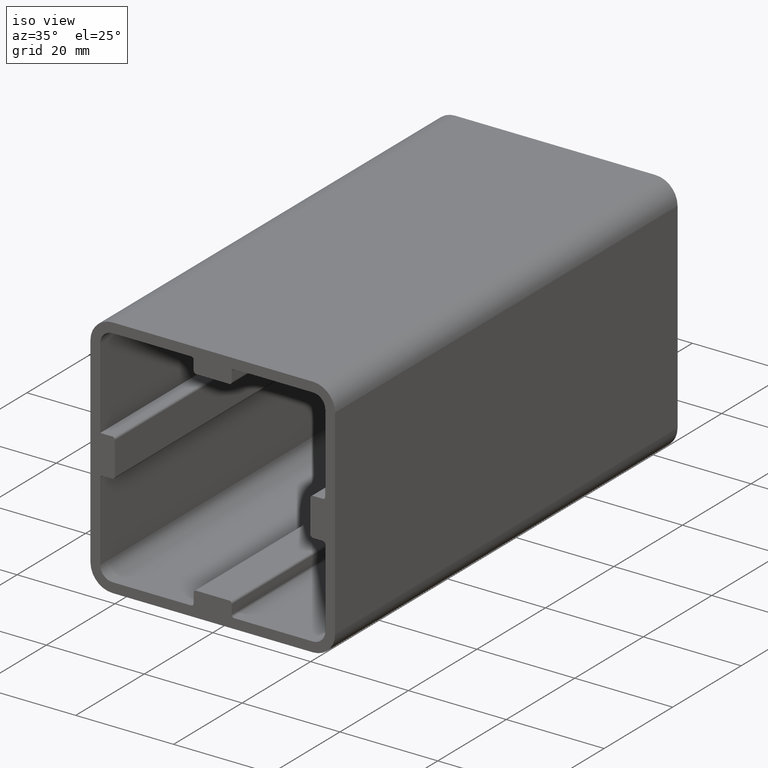
[diagram: clean part render]
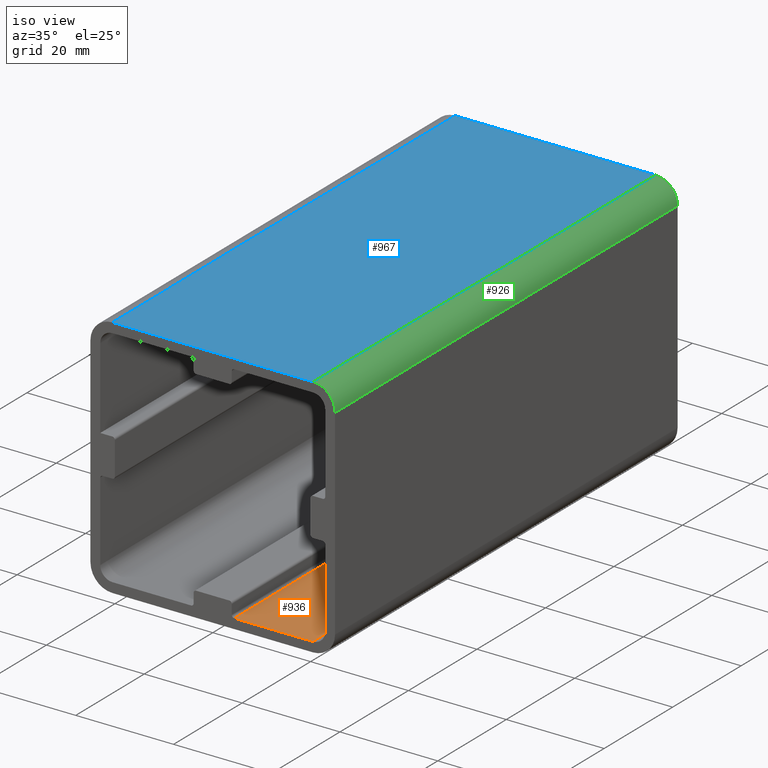
[diagram: same view with three faces highlighted in distinct colors, each labeled with its STEP entity id]
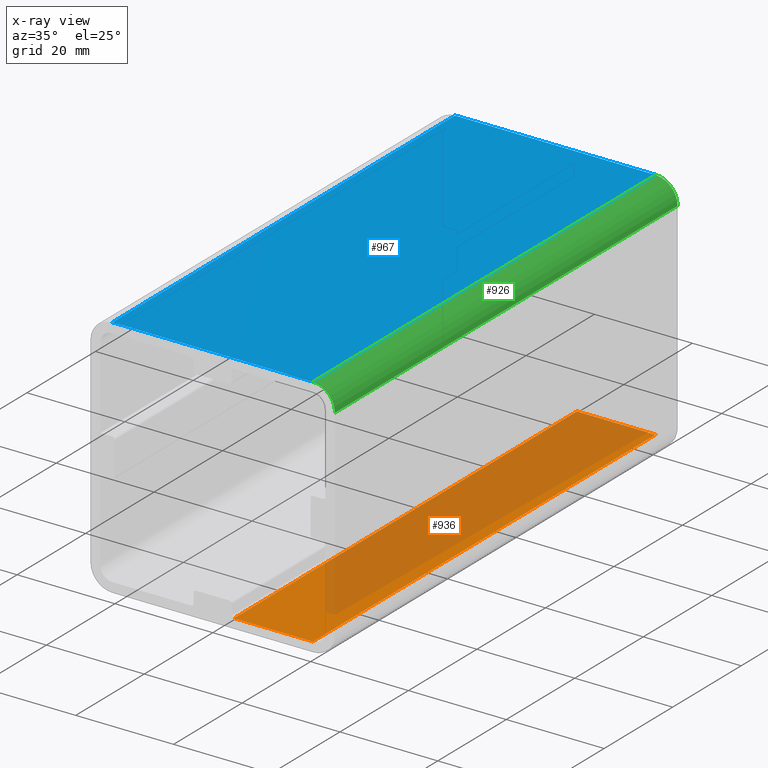
[diagram: x-ray of the same camera — body ghosted, the three highlighted faces saturated]
A machine part, iso view with three faces highlighted in distinct colors.
The next image is the same camera in x-ray (body ghosted, the three faces saturated) — at least one of them is partly hidden behind the body in this view.
Their STEP definitions:

[orange] entity #936 — the highlighted planar face has unit normal (-0, 0, -1).
#25=PLANE('',#1051);
#60=FACE_OUTER_BOUND('',#111,.T.);
#111=EDGE_LOOP('',(#768,#769,#770,#771));
#150=LINE('',#1402,#245);
#195=LINE('',#1567,#290);
#209=LINE('',#1592,#304);
#211=LINE('',#1596,#306);
#245=VECTOR('',#1110,10.);
#290=VECTOR('',#1239,10.);
#304=VECTOR('',#1273,10.);
#306=VECTOR('',#1279,10.);
#392=VERTEX_POINT('',#1399);
#393=VERTEX_POINT('',#1401);
#470=VERTEX_POINT('',#1564);
#471=VERTEX_POINT('',#1566);
#487=EDGE_CURVE('',#392,#393,#150,.T.);
#570=EDGE_CURVE('',#470,#471,#195,.T.);
#585=EDGE_CURVE('',#393,#470,#209,.T.);
#587=EDGE_CURVE('',#471,#392,#211,.T.);
#768=ORIENTED_EDGE('',*,*,#585,.F.);
#769=ORIENTED_EDGE('',*,*,#487,.F.);
#770=ORIENTED_EDGE('',*,*,#587,.F.);
#771=ORIENTED_EDGE('',*,*,#570,.F.);
#936=ADVANCED_FACE('',(#60),#25,.F.);
#1051=AXIS2_PLACEMENT_3D('',#1598,#1281,#1282);
#1110=DIRECTION('',(1.,0.,-2.32507439712075E-16));
#1239=DIRECTION('',(-1.,0.,2.32507439712075E-16));
#1273=DIRECTION('',(0.,-1.,0.));
#1279=DIRECTION('',(0.,1.,0.));
#1281=DIRECTION('center_axis',(-2.32507439712075E-16,0.,-1.));
#1282=DIRECTION('ref_axis',(-1.,0.,2.32507439712075E-16));
#1399=CARTESIAN_POINT('',(4.4,100.,-23.));
#1401=CARTESIAN_POINT('',(20.5,100.,-23.));
#1402=CARTESIAN_POINT('',(11.5,100.,-23.));
#1564=CARTESIAN_POINT('',(20.5,0.,-23.));
#1566=CARTESIAN_POINT('',(4.4,0.,-23.));
#1567=CARTESIAN_POINT('',(11.5,0.,-23.));
#1592=CARTESIAN_POINT('',(20.5,0.,-23.));
#1596=CARTESIAN_POINT('',(4.4,0.,-23.));
#1598=CARTESIAN_POINT('Origin',(23.,0.,-23.));

[blue] entity #967 — the highlighted planar face has unit normal (0, 0, 1).
#42=PLANE('',#1082);
#91=FACE_OUTER_BOUND('',#142,.T.);
#142=EDGE_LOOP('',(#892,#893,#894,#895));
#146=LINE('',#1386,#241);
#171=LINE('',#1479,#266);
#176=LINE('',#1492,#271);
#198=LINE('',#1574,#293);
#241=VECTOR('',#1098,10.);
#266=VECTOR('',#1171,10.);
#271=VECTOR('',#1184,10.);
#293=VECTOR('',#1248,10.);
#384=VERTEX_POINT('',#1383);
#385=VERTEX_POINT('',#1385);
#429=VERTEX_POINT('',#1477);
#433=VERTEX_POINT('',#1490);
#479=EDGE_CURVE('',#384,#385,#146,.T.);
#526=EDGE_CURVE('',#429,#384,#171,.T.);
#533=EDGE_CURVE('',#429,#433,#176,.T.);
#574=EDGE_CURVE('',#385,#433,#198,.T.);
#892=ORIENTED_EDGE('',*,*,#526,.F.);
#893=ORIENTED_EDGE('',*,*,#533,.T.);
#894=ORIENTED_EDGE('',*,*,#574,.F.);
#895=ORIENTED_EDGE('',*,*,#479,.F.);
#967=ADVANCED_FACE('',(#91),#42,.T.);
#1082=AXIS2_PLACEMENT_3D('',#1654,#1368,#1369);
#1098=DIRECTION('',(1.,0.,0.));
#1171=DIRECTION('',(0.,1.,0.));
#1184=DIRECTION('',(1.,0.,0.));
#1248=DIRECTION('',(0.,-1.,0.));
#1368=DIRECTION('center_axis',(0.,0.,1.));
#1369=DIRECTION('ref_axis',(1.,0.,0.));
#1383=CARTESIAN_POINT('',(-20.5,100.,25.));
#1385=CARTESIAN_POINT('',(20.5,100.,25.));
#1386=CARTESIAN_POINT('',(-25.,100.,25.));
#1477=CARTESIAN_POINT('',(-20.5,0.,25.));
#1479=CARTESIAN_POINT('',(-20.5,0.,25.));
#1490=CARTESIAN_POINT('',(20.5,0.,25.));
#1492=CARTESIAN_POINT('',(-25.,0.,25.));
#1574=CARTESIAN_POINT('',(20.5,0.,25.));
#1654=CARTESIAN_POINT('Origin',(-25.,0.,25.));

[green] entity #926 — the highlighted cylindrical surface (edge-blend (fillet) strip) has radius 4.5 mm, axis along (0, 1, 0).
#50=FACE_OUTER_BOUND('',#101,.T.);
#101=EDGE_LOOP('',(#728,#729,#730,#731));
#197=LINE('',#1572,#292);
#198=LINE('',#1574,#293);
#292=VECTOR('',#1245,10.);
#293=VECTOR('',#1248,10.);
#336=CIRCLE('',#993,4.5);
#359=CIRCLE('',#1020,4.5);
#385=VERTEX_POINT('',#1385);
#386=VERTEX_POINT('',#1387);
#432=VERTEX_POINT('',#1488);
#433=VERTEX_POINT('',#1490);
#480=EDGE_CURVE('',#386,#385,#336,.T.);
#532=EDGE_CURVE('',#433,#432,#359,.T.);
#573=EDGE_CURVE('',#432,#386,#197,.T.);
#574=EDGE_CURVE('',#385,#433,#198,.T.);
#728=ORIENTED_EDGE('',*,*,#480,.T.);
#729=ORIENTED_EDGE('',*,*,#574,.T.);
#730=ORIENTED_EDGE('',*,*,#532,.T.);
#731=ORIENTED_EDGE('',*,*,#573,.T.);
#899=CYLINDRICAL_SURFACE('',#1041,4.5);
#926=ADVANCED_FACE('',(#50),#899,.T.);
#993=AXIS2_PLACEMENT_3D('',#1388,#1099,#1100);
#1020=AXIS2_PLACEMENT_3D('',#1491,#1182,#1183);
#1041=AXIS2_PLACEMENT_3D('',#1573,#1246,#1247);
#1099=DIRECTION('center_axis',(0.,-1.,0.));
#1100=DIRECTION('ref_axis',(0.707106781186548,0.,0.707106781186548));
#1182=DIRECTION('center_axis',(0.,1.,0.));
#1183=DIRECTION('ref_axis',(0.707106781186548,0.,0.707106781186548));
#1245=DIRECTION('',(0.,1.,0.));
#1246=DIRECTION('center_axis',(0.,1.,0.));
#1247=DIRECTION('ref_axis',(0.707106781186548,0.,0.707106781186548));
#1248=DIRECTION('',(0.,-1.,0.));
#1385=CARTESIAN_POINT('',(20.5,100.,25.));
#1387=CARTESIAN_POINT('',(25.,100.,20.5));
#1388=CARTESIAN_POINT('Origin',(20.5,100.,20.5));
#1488=CARTESIAN_POINT('',(25.,0.,20.5));
#1490=CARTESIAN_POINT('',(20.5,0.,25.));
#1491=CARTESIAN_POINT('Origin',(20.5,0.,20.5));
#1572=CARTESIAN_POINT('',(25.,0.,20.5));
#1573=CARTESIAN_POINT('Origin',(20.5,0.,20.5));
#1574=CARTESIAN_POINT('',(20.5,0.,25.));